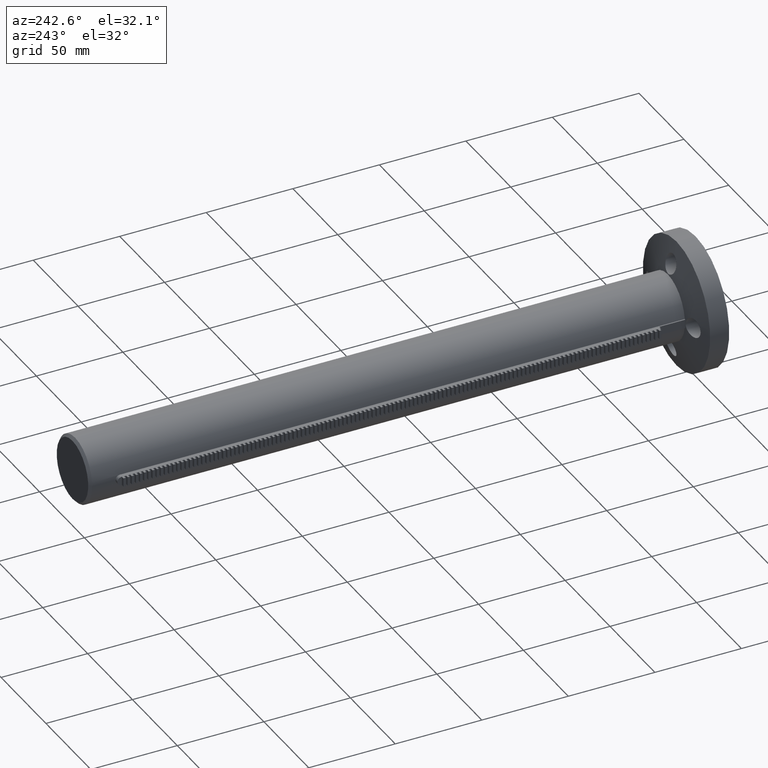
[diagram: clean part render]
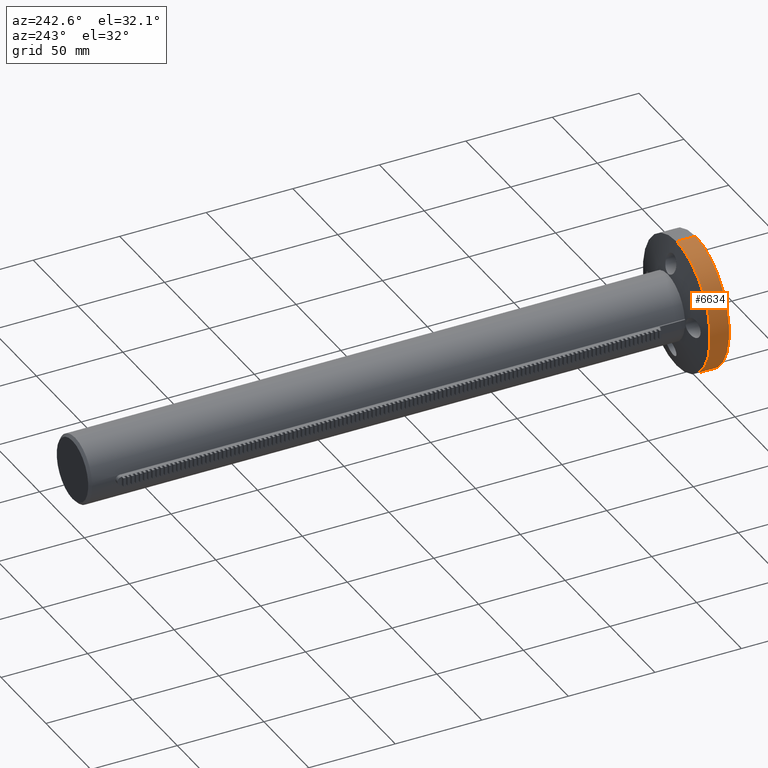
[diagram: same view with one face highlighted and labeled with its STEP entity id]
A machine part, auxiliary view. The second image highlights one B-rep face of the part: STEP entity #6634.
In plain terms, the highlighted cylindrical surface (partial cylindrical patch) has radius 37.5 mm, axis along (-0, -1, -0).
Its self-contained STEP definition (entity closure, byte-faithful):
#134 = ORIENTED_EDGE ( 'NONE', *, *, #9864, .T. ) ;
#780 = CARTESIAN_POINT ( 'NONE',  ( 4.592425496802574400E-015, -19.77435314003868400, 37.50000000000000000 ) ) ;
#1358 = DIRECTION ( 'NONE',  ( 0.0000000000000000000, 0.0000000000000000000, -1.000000000000000000 ) ) ;
#1521 = DIRECTION ( 'NONE',  ( -0.0000000000000000000, -1.000000000000000000, -0.0000000000000000000 ) ) ;
#2193 = VERTEX_POINT ( 'NONE', #6236 ) ;
#2841 = DIRECTION ( 'NONE',  ( -0.0000000000000000000, -1.000000000000000000, -0.0000000000000000000 ) ) ;
#3021 = ORIENTED_EDGE ( 'NONE', *, *, #6130, .F. ) ;
#4008 = VECTOR ( 'NONE', #1521, 1000.000000000000000 ) ;
#4331 = DIRECTION ( 'NONE',  ( 0.0000000000000000000, 0.0000000000000000000, -1.000000000000000000 ) ) ;
#4590 = DIRECTION ( 'NONE',  ( -0.0000000000000000000, -1.000000000000000000, -0.0000000000000000000 ) ) ;
#4950 = CIRCLE ( 'NONE', #12667, 37.50000000000000000 ) ;
#5955 = VERTEX_POINT ( 'NONE', #11967 ) ;
#5987 = CARTESIAN_POINT ( 'NONE',  ( 0.0000000000000000000, -3.070097820889738900, 0.0000000000000000000 ) ) ;
#5991 = FACE_OUTER_BOUND ( 'NONE', #8550, .T. ) ;
#6130 = EDGE_CURVE ( 'NONE', #2193, #5955, #19345, .T. ) ;
#6236 = CARTESIAN_POINT ( 'NONE',  ( 4.592425496802574400E-015, -3.070097820889738900, 37.50000000000000000 ) ) ;
#6634 = ADVANCED_FACE ( 'NONE', ( #5991 ), #17895, .T. ) ;
#6649 = CARTESIAN_POINT ( 'NONE',  ( 0.0000000000000000000, 7.929902179110256600, -37.50000000000000700 ) ) ;
#6732 = VERTEX_POINT ( 'NONE', #7217 ) ;
#7107 = LINE ( 'NONE', #780, #10692 ) ;
#7217 = CARTESIAN_POINT ( 'NONE',  ( 4.592425496802575200E-015, 7.929902179110256600, 37.50000000000000700 ) ) ;
#8534 = VERTEX_POINT ( 'NONE', #6649 ) ;
#8550 = EDGE_LOOP ( 'NONE', ( #13532, #134, #9898, #3021 ) ) ;
#8562 = DIRECTION ( 'NONE',  ( -0.0000000000000000000, -1.000000000000000000, -0.0000000000000000000 ) ) ;
#9275 = EDGE_CURVE ( 'NONE', #8534, #5955, #10217, .T. ) ;
#9500 = EDGE_CURVE ( 'NONE', #6732, #2193, #7107, .T. ) ;
#9712 = AXIS2_PLACEMENT_3D ( 'NONE', #5987, #2841, #4331 ) ;
#9864 = EDGE_CURVE ( 'NONE', #6732, #8534, #4950, .T. ) ;
#9898 = ORIENTED_EDGE ( 'NONE', *, *, #9275, .T. ) ;
#10217 = LINE ( 'NONE', #10674, #4008 ) ;
#10674 = CARTESIAN_POINT ( 'NONE',  ( 0.0000000000000000000, -19.77435314003868400, -37.50000000000000000 ) ) ;
#10692 = VECTOR ( 'NONE', #15918, 1000.000000000000000 ) ;
#11967 = CARTESIAN_POINT ( 'NONE',  ( 0.0000000000000000000, -3.070097820889738900, -37.50000000000000000 ) ) ;
#12644 = AXIS2_PLACEMENT_3D ( 'NONE', #13004, #8562, #17550 ) ;
#12667 = AXIS2_PLACEMENT_3D ( 'NONE', #19634, #4590, #1358 ) ;
#13004 = CARTESIAN_POINT ( 'NONE',  ( 0.0000000000000000000, -19.77435314003868400, 0.0000000000000000000 ) ) ;
#13532 = ORIENTED_EDGE ( 'NONE', *, *, #9500, .F. ) ;
#15918 = DIRECTION ( 'NONE',  ( -0.0000000000000000000, -1.000000000000000000, -0.0000000000000000000 ) ) ;
#17550 = DIRECTION ( 'NONE',  ( 0.0000000000000000000, 0.0000000000000000000, -1.000000000000000000 ) ) ;
#17895 = CYLINDRICAL_SURFACE ( 'NONE', #12644, 37.50000000000000000 ) ;
#19345 = CIRCLE ( 'NONE', #9712, 37.50000000000000000 ) ;
#19634 = CARTESIAN_POINT ( 'NONE',  ( 0.0000000000000000000, 7.929902179110256600, 0.0000000000000000000 ) ) ;